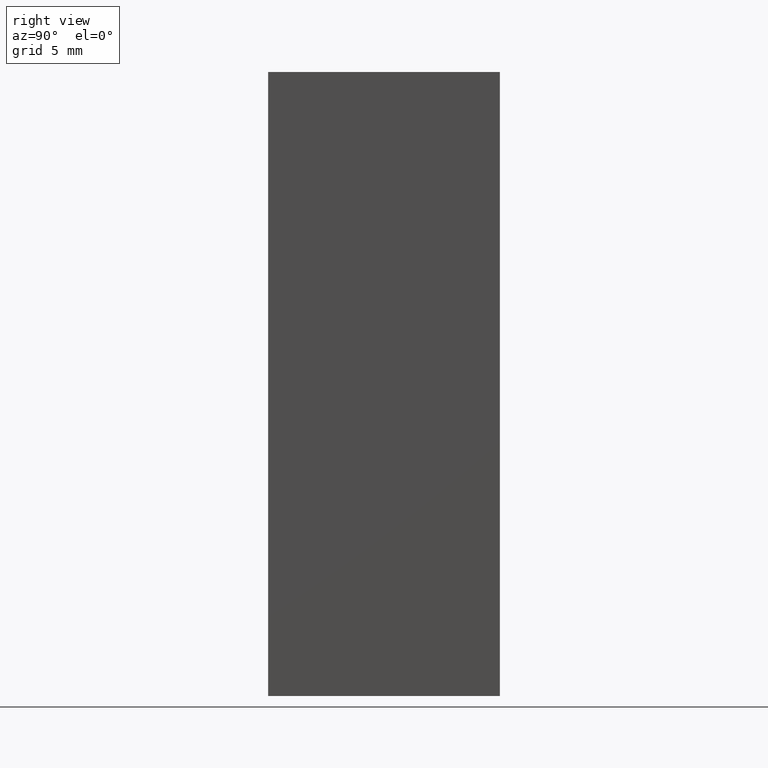
[diagram: clean part render]
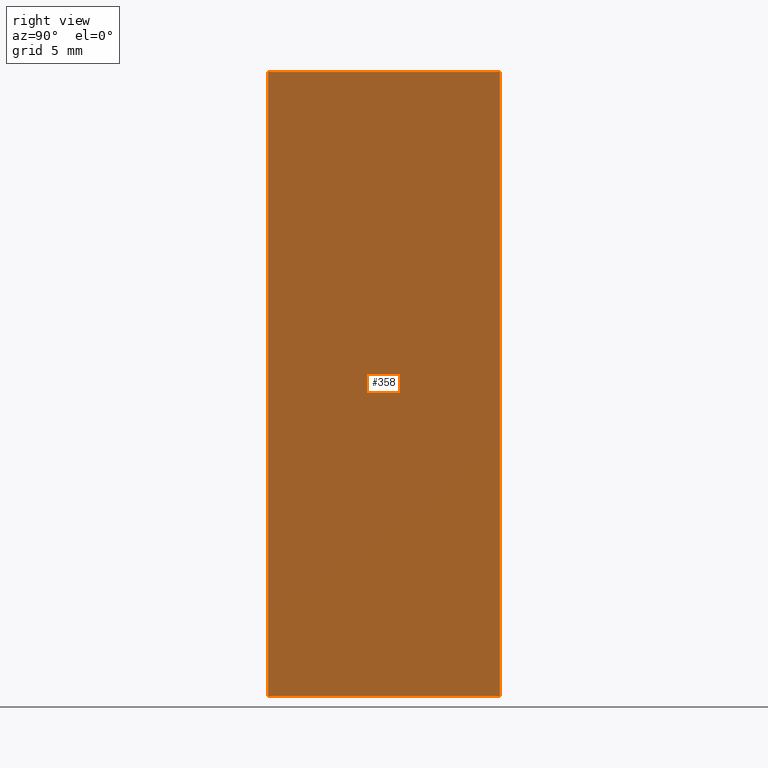
[diagram: same view with one face highlighted and labeled with its STEP entity id]
A machine part, right view. The second image highlights one B-rep face of the part: STEP entity #358.
In plain terms, the highlighted planar face has unit normal (1, 0, -0).
Its self-contained STEP definition (entity closure, byte-faithful):
#18 = EDGE_CURVE ( 'NONE', #414, #139, #477, .T. ) ;
#48 = CARTESIAN_POINT ( 'NONE',  ( 17.00000000000001066, 12.99999999999999822, -35.00000000000000000 ) ) ;
#76 = CARTESIAN_POINT ( 'NONE',  ( 17.00000000000001066, 12.99999999999999822, -35.00000000000000000 ) ) ;
#107 = CARTESIAN_POINT ( 'NONE',  ( 17.00000000000001066, 12.99999999999999822, 0.0000000000000000000 ) ) ;
#130 = CARTESIAN_POINT ( 'NONE',  ( 17.00000000000002132, -2.143131898507878898E-16, -35.00000000000000000 ) ) ;
#134 = EDGE_CURVE ( 'NONE', #517, #640, #298, .T. ) ;
#135 = CARTESIAN_POINT ( 'NONE',  ( 17.00000000000001066, 12.99999999999999822, 0.0000000000000000000 ) ) ;
#139 = VERTEX_POINT ( 'NONE', #339 ) ;
#148 = DIRECTION ( 'NONE',  ( 0.0000000000000000000, 0.0000000000000000000, 1.000000000000000000 ) ) ;
#150 = DIRECTION ( 'NONE',  ( 1.000000000000000000, 8.006416042969880035E-16, -0.0000000000000000000 ) ) ;
#157 = VECTOR ( 'NONE', #588, 1000.000000000000000 ) ;
#228 = VECTOR ( 'NONE', #308, 1000.000000000000000 ) ;
#253 = DIRECTION ( 'NONE',  ( -8.006416042969880035E-16, 1.000000000000000000, 0.0000000000000000000 ) ) ;
#257 = VECTOR ( 'NONE', #328, 1000.000000000000000 ) ;
#298 = LINE ( 'NONE', #601, #479 ) ;
#308 = DIRECTION ( 'NONE',  ( -8.006416042969880035E-16, 1.000000000000000000, -0.0000000000000000000 ) ) ;
#328 = DIRECTION ( 'NONE',  ( 0.0000000000000000000, 0.0000000000000000000, 1.000000000000000000 ) ) ;
#339 = CARTESIAN_POINT ( 'NONE',  ( 17.00000000000002132, -2.143131898507878898E-16, 0.0000000000000000000 ) ) ;
#358 = ADVANCED_FACE ( 'NONE', ( #368 ), #566, .T. ) ;
#368 = FACE_OUTER_BOUND ( 'NONE', #619, .T. ) ;
#374 = ORIENTED_EDGE ( 'NONE', *, *, #388, .F. ) ;
#377 = LINE ( 'NONE', #520, #157 ) ;
#388 = EDGE_CURVE ( 'NONE', #139, #640, #554, .T. ) ;
#414 = VERTEX_POINT ( 'NONE', #578 ) ;
#425 = AXIS2_PLACEMENT_3D ( 'NONE', #48, #150, #253 ) ;
#470 = ORIENTED_EDGE ( 'NONE', *, *, #509, .T. ) ;
#477 = LINE ( 'NONE', #130, #257 ) ;
#479 = VECTOR ( 'NONE', #148, 1000.000000000000000 ) ;
#509 = EDGE_CURVE ( 'NONE', #414, #517, #377, .T. ) ;
#517 = VERTEX_POINT ( 'NONE', #76 ) ;
#520 = CARTESIAN_POINT ( 'NONE',  ( 17.00000000000001066, 12.99999999999999822, -35.00000000000000000 ) ) ;
#554 = LINE ( 'NONE', #107, #228 ) ;
#556 = ORIENTED_EDGE ( 'NONE', *, *, #18, .F. ) ;
#566 = PLANE ( 'NONE',  #425 ) ;
#578 = CARTESIAN_POINT ( 'NONE',  ( 17.00000000000002132, -2.143131898507878898E-16, -35.00000000000000000 ) ) ;
#588 = DIRECTION ( 'NONE',  ( -8.006416042969880035E-16, 1.000000000000000000, -0.0000000000000000000 ) ) ;
#601 = CARTESIAN_POINT ( 'NONE',  ( 17.00000000000001066, 12.99999999999999822, -35.00000000000000000 ) ) ;
#619 = EDGE_LOOP ( 'NONE', ( #374, #556, #470, #643 ) ) ;
#640 = VERTEX_POINT ( 'NONE', #135 ) ;
#643 = ORIENTED_EDGE ( 'NONE', *, *, #134, .T. ) ;